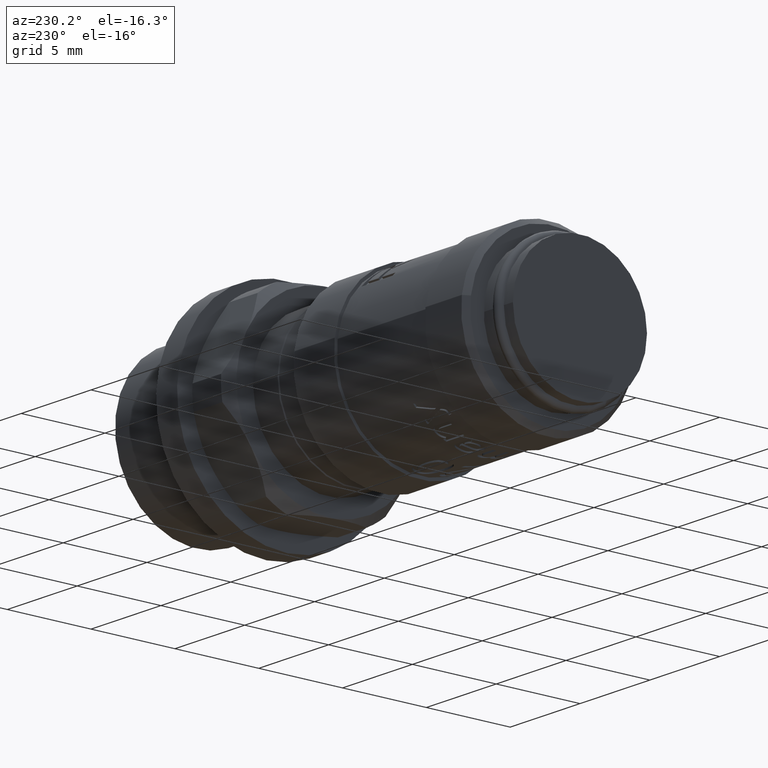
[diagram: clean part render]
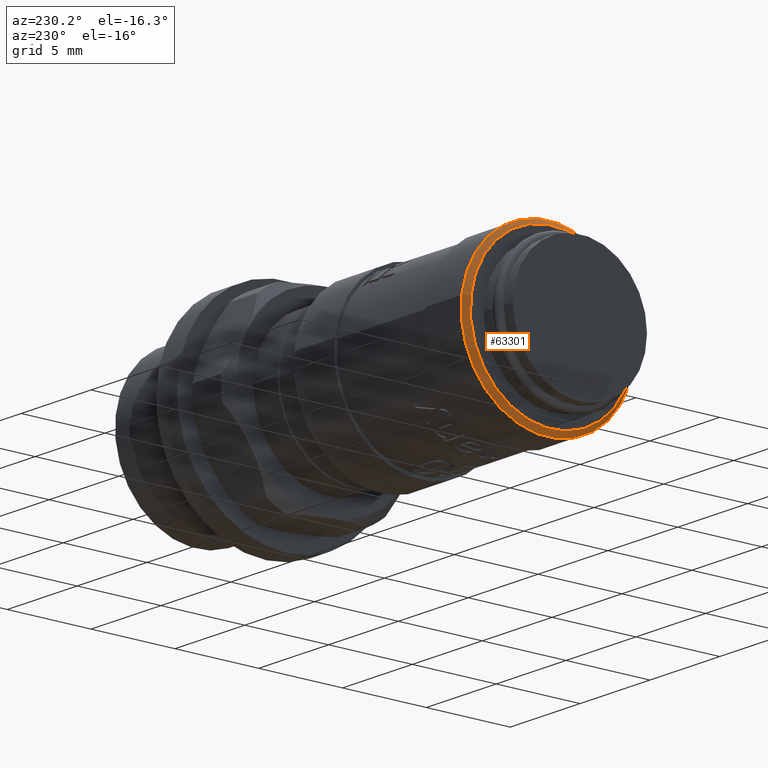
[diagram: same view with one face highlighted and labeled with its STEP entity id]
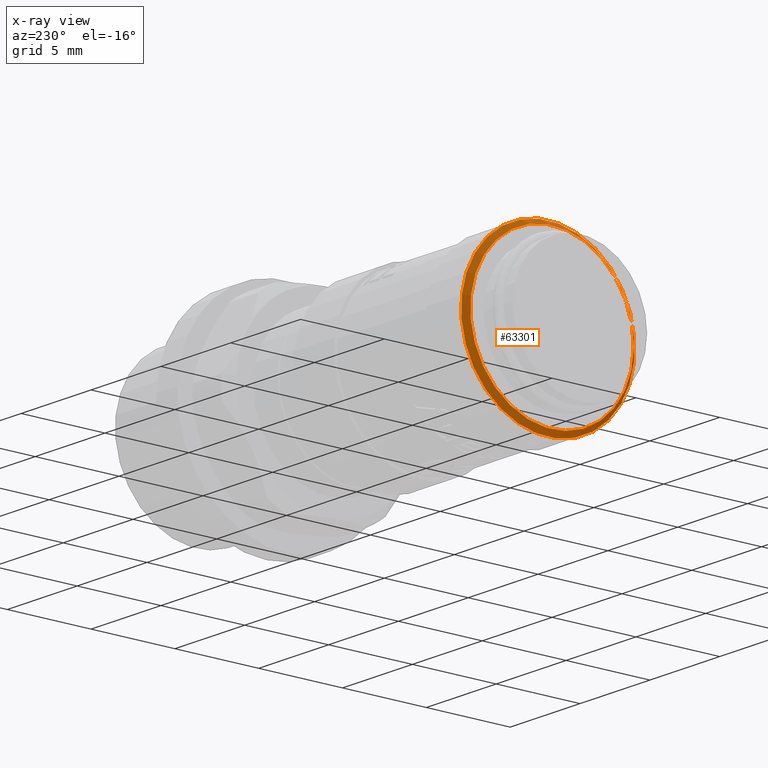
[diagram: x-ray of the same camera — body ghosted, the highlighted face saturated]
A machine part, auxiliary view. The second image highlights one B-rep face of the part: STEP entity #63301.
The next image is the same camera in x-ray: the body ghosted, the highlighted face saturated — about 0% of this face is hidden behind the body in this view.
In plain terms, the highlighted conical surface has half-angle 45 deg.
Its self-contained STEP definition (entity closure, byte-faithful):
#63274=CARTESIAN_POINT('',(2.15,0.0,0.0));
#63275=DIRECTION('',(1.0,0.0,0.0));
#63276=DIRECTION('',(0.0,-0.99210079150397,-0.125443291957744));
#63277=AXIS2_PLACEMENT_3D('',#63274,#63275,#63276);
#63278=CONICAL_SURFACE('',#63277,5.025,45.000000000000007);
#63279=CARTESIAN_POINT('',(2.0,4.836491358581855,0.611536048294001));
#63280=VERTEX_POINT('',#63279);
#63281=CARTESIAN_POINT('',(2.0,0.0,0.0));
#63282=DIRECTION('',(1.0,0.0,0.0));
#63283=DIRECTION('',(0.0,-0.99210079150397,-0.125443291957744));
#63284=AXIS2_PLACEMENT_3D('',#63281,#63282,#63283);
#63285=CIRCLE('',#63284,4.874999999999999);
#63286=EDGE_CURVE('',#63280,#63280,#63285,.T.);
#63287=ORIENTED_EDGE('',*,*,#63286,.T.);
#63288=EDGE_LOOP('',(#63287));
#63289=FACE_OUTER_BOUND('',#63288,.T.);
#63290=CARTESIAN_POINT('',(2.3,5.134121596033046,0.649169035881323));
#63291=VERTEX_POINT('',#63290);
#63292=CARTESIAN_POINT('',(2.3,0.0,0.0));
#63293=DIRECTION('',(-1.0,0.0,0.0));
#63294=DIRECTION('',(0.0,-0.99210079150397,-0.125443291957744));
#63295=AXIS2_PLACEMENT_3D('',#63292,#63293,#63294);
#63296=CIRCLE('',#63295,5.175);
#63297=EDGE_CURVE('',#63291,#63291,#63296,.T.);
#63298=ORIENTED_EDGE('',*,*,#63297,.T.);
#63299=EDGE_LOOP('',(#63298));
#63300=FACE_BOUND('',#63299,.T.);
#63301=ADVANCED_FACE('',(#63289,#63300),#63278,.T.);